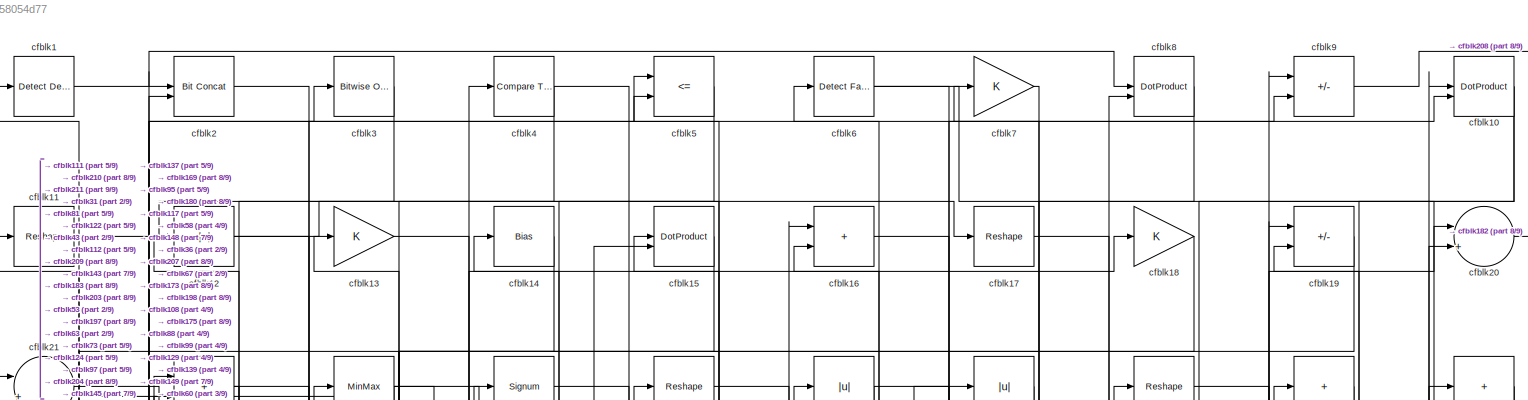
[diagram: root canvas - part 1/9, full width, top band]
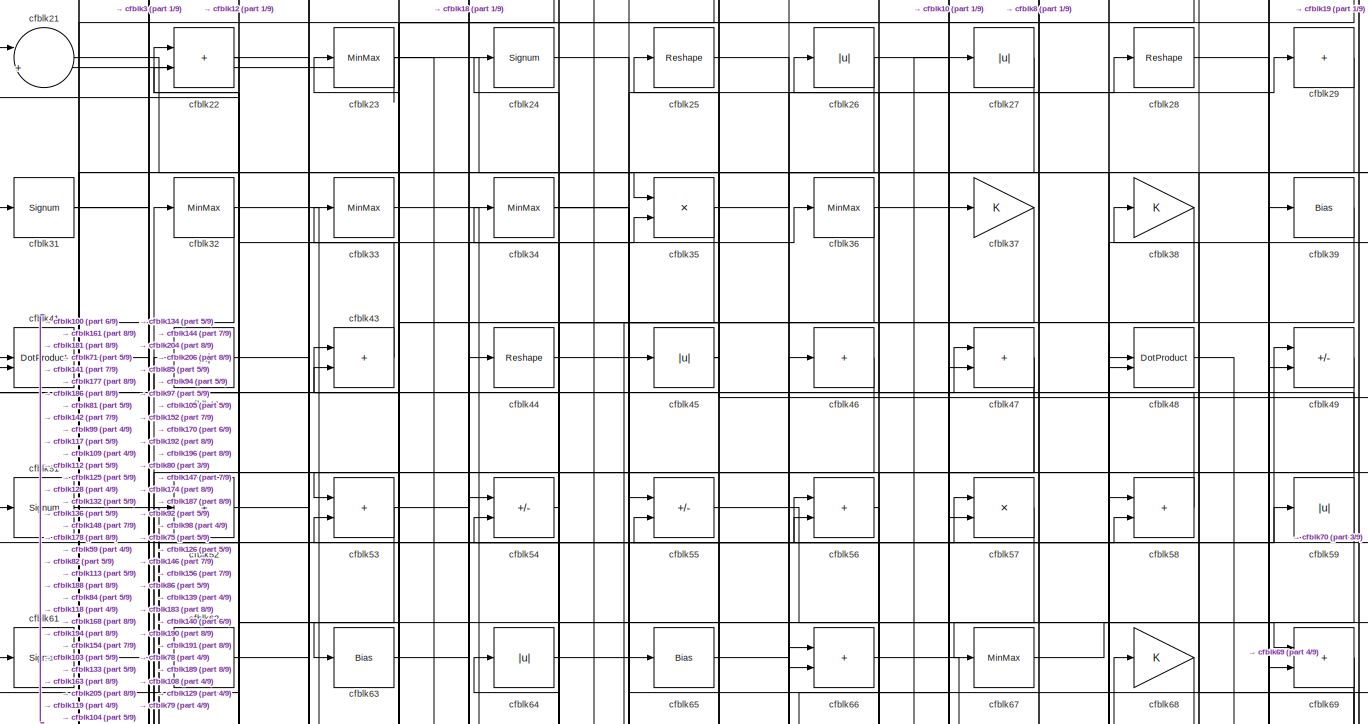
[diagram: root canvas - part 2/9, full width, top band]
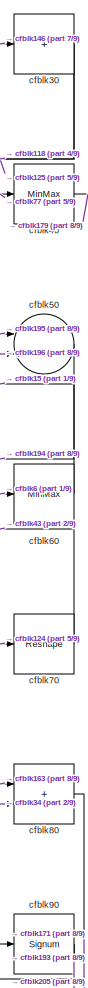
[diagram: root canvas - part 3/9, top right region]
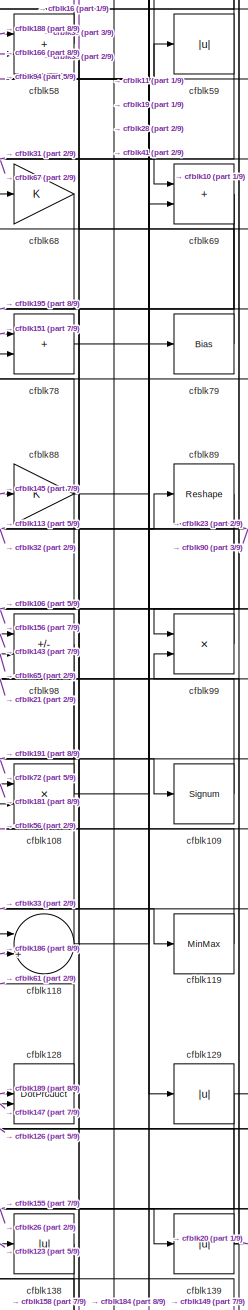
[diagram: root canvas - part 4/9, middle right region]
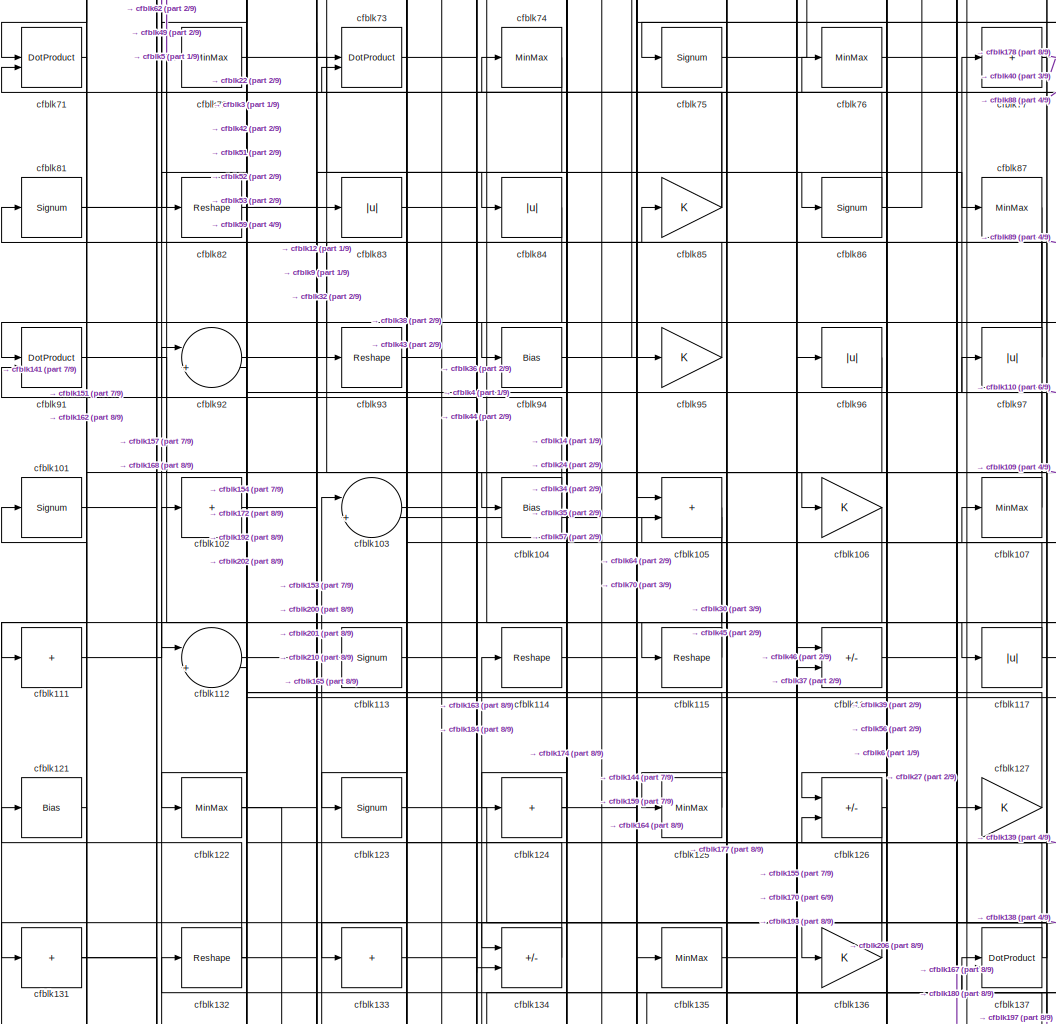
[diagram: root canvas - part 5/9, central region]
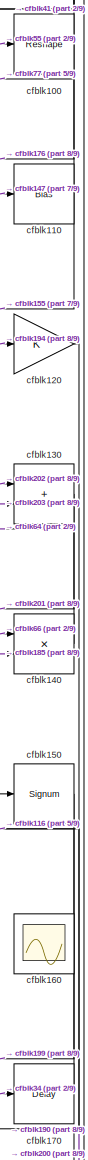
[diagram: root canvas - part 6/9, middle right region]
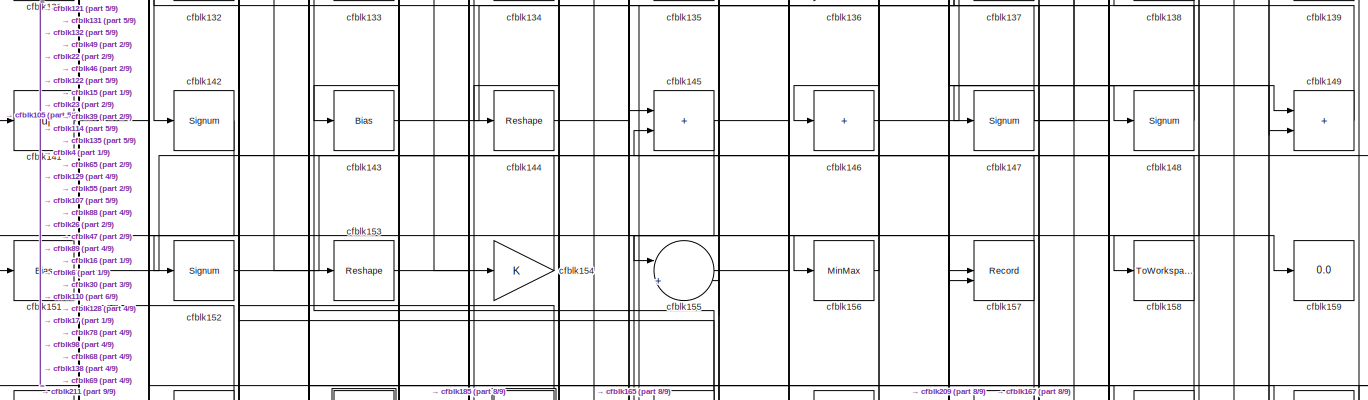
[diagram: root canvas - part 7/9, full width, bottom band]
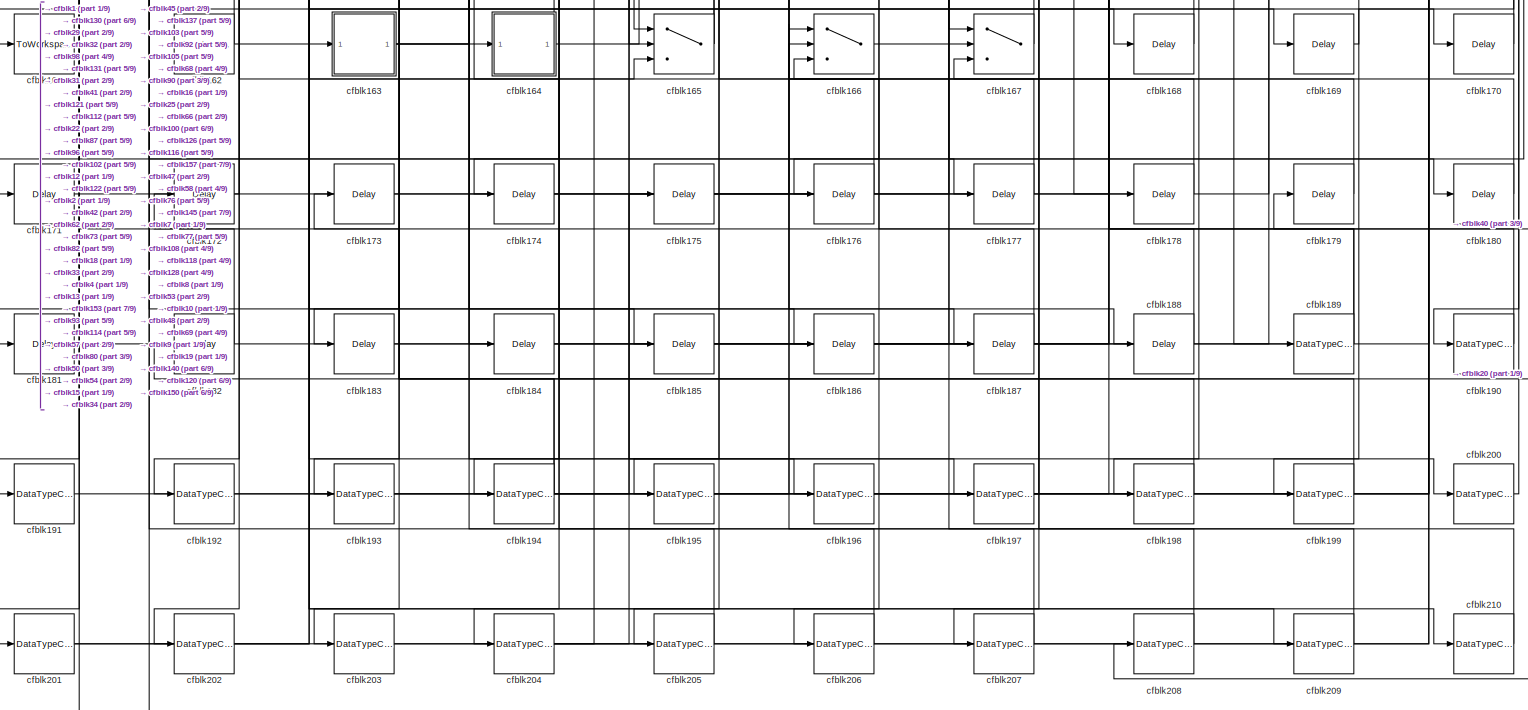
[diagram: root canvas - part 8/9, full width, bottom band]
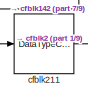
[diagram: root canvas - part 9/9, bottom left region]
MODEL slx_84d758054d77
KIND model
CONFIG AbsTol = auto
CONFIG EnableMultiTasking = off
CONFIG FixedStep = auto
CONFIG MaxStep = auto
CONFIG MinStep = auto
CONFIG RelTol = 1e-3
CONFIG SampleTimeConstraint = Unconstrained
CONFIG SolverName = VariableStepAuto
CONFIG StartTime = 0.0
CONFIG StopTime = 10.0
BLOCK [Reference] cfblk1  REF=simulink/Logic and Bit
Operations/Detect
Decrease
  LibrarySourceBlock = hdlsllib/Logic and Bit\nOperations/Detect\nDecrease
  SourceBlock = simulink/Logic and Bit\nOperations/Detect\nDecrease
  SourceType = Detect Decrease
BLOCK [DotProduct] cfblk10
  OutDataTypeStr = Inherit: Inherit via internal rule
BLOCK [Reshape] cfblk100
BLOCK [Signum] cfblk101
BLOCK [Sum] cfblk102
  IconShape = rectangular
  Inputs = +
BLOCK [Sum] cfblk103
  Inputs = |++
BLOCK [Bias] cfblk104
  Bias = 0.0
  SaturateOnIntegerOverflow = off
BLOCK [Sum] cfblk105
  IconShape = rectangular
BLOCK [Gain] cfblk106
BLOCK [MinMax] cfblk107
BLOCK [Product] cfblk108
  Inputs = */
  RndMeth = Zero
  SaturateOnIntegerOverflow = on
BLOCK [Signum] cfblk109
BLOCK [Reshape] cfblk11
BLOCK [Bias] cfblk110
  Bias = 0.0
  SaturateOnIntegerOverflow = off
BLOCK [Sum] cfblk111
  IconShape = rectangular
  Inputs = +
BLOCK [Sum] cfblk112
  Inputs = |++
BLOCK [Signum] cfblk113
BLOCK [Reshape] cfblk114
BLOCK [Reshape] cfblk115
BLOCK [Sum] cfblk116
  IconShape = rectangular
  Inputs = +-
BLOCK [Abs] cfblk117
  SaturateOnIntegerOverflow = off
BLOCK [Sum] cfblk118
  Inputs = |++
BLOCK [MinMax] cfblk119
BLOCK [Abs] cfblk12
  SaturateOnIntegerOverflow = off
BLOCK [Gain] cfblk120
BLOCK [Bias] cfblk121
  Bias = 0.0
  SaturateOnIntegerOverflow = off
BLOCK [MinMax] cfblk122
BLOCK [Signum] cfblk123
BLOCK [Sum] cfblk124
  IconShape = rectangular
  Inputs = +
BLOCK [MinMax] cfblk125
BLOCK [Sum] cfblk126
  IconShape = rectangular
  Inputs = +-
BLOCK [Gain] cfblk127
BLOCK [DotProduct] cfblk128
  OutDataTypeStr = Inherit: Inherit via internal rule
BLOCK [Abs] cfblk129
  SaturateOnIntegerOverflow = off
BLOCK [Gain] cfblk13
BLOCK [Sum] cfblk130
  IconShape = rectangular
BLOCK [Sum] cfblk131
  IconShape = rectangular
  Inputs = +
BLOCK [Reshape] cfblk132
BLOCK [Sum] cfblk133
  IconShape = rectangular
  Inputs = +
BLOCK [Sum] cfblk134
  IconShape = rectangular
  Inputs = +-
BLOCK [MinMax] cfblk135
BLOCK [Gain] cfblk136
BLOCK [DotProduct] cfblk137
  OutDataTypeStr = Inherit: Inherit via internal rule
BLOCK [Abs] cfblk138
  SaturateOnIntegerOverflow = off
BLOCK [Abs] cfblk139
  SaturateOnIntegerOverflow = off
BLOCK [Bias] cfblk14
  Bias = 0.0
  SaturateOnIntegerOverflow = off
BLOCK [Product] cfblk140
  Inputs = */
  RndMeth = Zero
  SaturateOnIntegerOverflow = on
BLOCK [Abs] cfblk141
  SaturateOnIntegerOverflow = off
BLOCK [Signum] cfblk142
BLOCK [Bias] cfblk143
  Bias = 0.0
  SaturateOnIntegerOverflow = off
BLOCK [Reshape] cfblk144
BLOCK [Sum] cfblk145
  IconShape = rectangular
BLOCK [Sum] cfblk146
  IconShape = rectangular
  Inputs = +
BLOCK [Signum] cfblk147
BLOCK [Signum] cfblk148
BLOCK [Sum] cfblk149
  IconShape = rectangular
BLOCK [DotProduct] cfblk15
  OutDataTypeStr = Inherit: Inherit via internal rule
BLOCK [Signum] cfblk150
BLOCK [Bias] cfblk151
  Bias = 0.0
  SaturateOnIntegerOverflow = off
BLOCK [Signum] cfblk152
BLOCK [Reshape] cfblk153
BLOCK [Gain] cfblk154
BLOCK [Sum] cfblk155
  Inputs = |++
BLOCK [MinMax] cfblk156
BLOCK [Record] cfblk157
  CompatibilityTag = XY
  FileSettingsInternal = {"entries":[{"content":{"excelSettings":{"content":{},"type":"Streamout.ExcelSettings"}},"type":"Streamout.FileSettingStorage","uuid":""}],"packageUris":["http:\/\/schema.mathworks.com\/mf0\/streamout_blocks\/R2020a"],"version":"1.0"}
  Layout = [1 1]
  SignalsInternal = {"entries":[{"content":{},"type":"RecordBlkView.InputSignals","uuid":""}],"packageUris":["http:\/\/schema.mathworks.com\/mf0\/streamout_blocks\/R2020a"],"version":"1.0"}
  VisualizationBindings = {"xyplotplugin":{"info":[{"series":[{"bindingParametersList":[{"parameter":"X-Axis","signalID":3182,"signalName":"cfblk209"},{"parameter":"Y-Axis","signalID":3186,"signalName":"cfblk131"}],"seriesID":12440}],"subplotID":1}]}}
  st = -1
BLOCK [ToWorkspace] cfblk158
  MaxDataPoints = inf
  SampleTime = -1
  SaveFormat = Timeseries
  VariableName = simout
BLOCK [Display] cfblk159
  Decimation = 1
BLOCK [Sum] cfblk16
  IconShape = rectangular
BLOCK [Scope] cfblk160
  Floating = on
  NumInputPorts = 1
  ScopeSpecificationString = Simulink.scopes.TimeScopeBlockCfg('CurrentConfiguration', extmgr.ConfigurationSet(extmgr.Configuration('Core','General UI',true,'FigureColor',[0.156862745098039 0.156862745098039 0.156862745098039]),extmgr.Configuration('Core','Source UI',true),extmgr.Configuration('Sources','WiredSimulink',true,'DataLoggingVariableName','ScopeData1','DataLoggingSaveFormat','StructureWithTime','DataLoggingLimitDat...<+2713ch>
BLOCK [ToWorkspace] cfblk161
  MaxDataPoints = inf
  SampleTime = -1
  SaveFormat = Timeseries
  VariableName = simout
BLOCK [Reference] cfblk162  REF=hdlsllib/Sources/Counter
Limited
  SourceBlock = hdlsllib/Sources/Counter\nLimited
  SourceType = Counter Limited
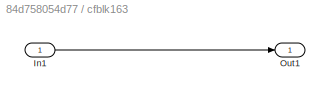
BLOCK [SubSystem] cfblk163
  LibrarySourceBlock = hdlsllib/Ports &\nSubsystems/Subsystem
BLOCK [Inport] cfblk163/In1
BLOCK [Outport] cfblk163/Out1
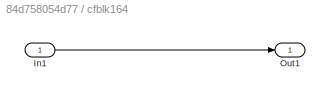
BLOCK [SubSystem] cfblk164
  LibrarySourceBlock = hdlsllib/Ports &\nSubsystems/Subsystem
BLOCK [Inport] cfblk164/In1
BLOCK [Outport] cfblk164/Out1
BLOCK [Switch] cfblk165
  InputSameDT = off
  SaturateOnIntegerOverflow = off
BLOCK [Switch] cfblk166
  InputSameDT = off
  SaturateOnIntegerOverflow = off
BLOCK [Switch] cfblk167
  InputSameDT = off
  SaturateOnIntegerOverflow = off
BLOCK [Delay] cfblk168
  InputPortMap = u0
  SampleTime = 1
BLOCK [Delay] cfblk169
  InputPortMap = u0
  SampleTime = 1
BLOCK [Reshape] cfblk17
BLOCK [Delay] cfblk170
  InputPortMap = u0
  SampleTime = 1
BLOCK [Delay] cfblk171
  InputPortMap = u0
  SampleTime = 1
BLOCK [Delay] cfblk172
  InputPortMap = u0
  SampleTime = 1
BLOCK [Delay] cfblk173
  InputPortMap = u0
  SampleTime = 1
BLOCK [Delay] cfblk174
  InputPortMap = u0
  SampleTime = 1
BLOCK [Delay] cfblk175
  InputPortMap = u0
  SampleTime = 1
BLOCK [Delay] cfblk176
  InputPortMap = u0
  SampleTime = 1
BLOCK [Delay] cfblk177
  InputPortMap = u0
  SampleTime = 1
BLOCK [Delay] cfblk178
  InputPortMap = u0
  SampleTime = 1
BLOCK [Delay] cfblk179
  InputPortMap = u0
  SampleTime = 1
BLOCK [Gain] cfblk18
BLOCK [Delay] cfblk180
  InputPortMap = u0
  SampleTime = 1
BLOCK [Delay] cfblk181
  InputPortMap = u0
  SampleTime = 1
BLOCK [Delay] cfblk182
  InputPortMap = u0
  SampleTime = 1
BLOCK [Delay] cfblk183
  InputPortMap = u0
  SampleTime = 1
BLOCK [Delay] cfblk184
  InputPortMap = u0
  SampleTime = 1
BLOCK [Delay] cfblk185
  InputPortMap = u0
  SampleTime = 1
BLOCK [Delay] cfblk186
  InputPortMap = u0
  SampleTime = 1
BLOCK [Delay] cfblk187
  InputPortMap = u0
  SampleTime = 1
BLOCK [Delay] cfblk188
  InputPortMap = u0
  SampleTime = 1
BLOCK [DataTypeConversion] cfblk189
  RndMeth = Floor
  SaturateOnIntegerOverflow = off
BLOCK [Sum] cfblk19
  IconShape = rectangular
  Inputs = +-
BLOCK [DataTypeConversion] cfblk190
  OutDataTypeStr = uint8
  RndMeth = Floor
  SaturateOnIntegerOverflow = off
BLOCK [DataTypeConversion] cfblk191
  OutDataTypeStr = uint8
  RndMeth = Floor
  SaturateOnIntegerOverflow = off
BLOCK [DataTypeConversion] cfblk192
  OutDataTypeStr = uint8
  RndMeth = Floor
  SaturateOnIntegerOverflow = off
BLOCK [DataTypeConversion] cfblk193
  OutDataTypeStr = uint8
  RndMeth = Floor
  SaturateOnIntegerOverflow = off
BLOCK [DataTypeConversion] cfblk194
  RndMeth = Floor
  SaturateOnIntegerOverflow = off
BLOCK [DataTypeConversion] cfblk195
  OutDataTypeStr = uint8
  RndMeth = Floor
  SaturateOnIntegerOverflow = off
BLOCK [DataTypeConversion] cfblk196
  OutDataTypeStr = uint8
  RndMeth = Floor
  SaturateOnIntegerOverflow = off
BLOCK [DataTypeConversion] cfblk197
  OutDataTypeStr = uint8
  RndMeth = Floor
  SaturateOnIntegerOverflow = off
BLOCK [DataTypeConversion] cfblk198
  OutDataTypeStr = uint8
  RndMeth = Floor
  SaturateOnIntegerOverflow = off
BLOCK [DataTypeConversion] cfblk199
  OutDataTypeStr = uint8
  RndMeth = Floor
  SaturateOnIntegerOverflow = off
BLOCK [Reference] cfblk2  REF=hdlsllib/Logic and Bit
Operations/Bit Concat
  SourceBlock = hdlsllib/Logic and Bit\nOperations/Bit Concat
  SourceType = Bit Concat
BLOCK [Sum] cfblk20
  Inputs = |++
BLOCK [DataTypeConversion] cfblk200
  OutDataTypeStr = uint8
  RndMeth = Floor
  SaturateOnIntegerOverflow = off
BLOCK [DataTypeConversion] cfblk201
  RndMeth = Floor
  SaturateOnIntegerOverflow = off
BLOCK [DataTypeConversion] cfblk202
  OutDataTypeStr = uint8
  RndMeth = Floor
  SaturateOnIntegerOverflow = off
BLOCK [DataTypeConversion] cfblk203
  OutDataTypeStr = uint8
  RndMeth = Floor
  SaturateOnIntegerOverflow = off
BLOCK [DataTypeConversion] cfblk204
  RndMeth = Floor
  SaturateOnIntegerOverflow = off
BLOCK [DataTypeConversion] cfblk205
  OutDataTypeStr = uint8
  RndMeth = Floor
  SaturateOnIntegerOverflow = off
BLOCK [DataTypeConversion] cfblk206
  OutDataTypeStr = uint8
  RndMeth = Floor
  SaturateOnIntegerOverflow = off
BLOCK [DataTypeConversion] cfblk207
  OutDataTypeStr = uint8
  RndMeth = Floor
  SaturateOnIntegerOverflow = off
BLOCK [DataTypeConversion] cfblk208
  OutDataTypeStr = uint8
  RndMeth = Floor
  SaturateOnIntegerOverflow = off
BLOCK [DataTypeConversion] cfblk209
  OutDataTypeStr = uint8
  RndMeth = Floor
  SaturateOnIntegerOverflow = off
BLOCK [Sum] cfblk21
  Inputs = |++
BLOCK [DataTypeConversion] cfblk210
  OutDataTypeStr = uint8
  RndMeth = Floor
  SaturateOnIntegerOverflow = off
BLOCK [DataTypeConversion] cfblk211
  OutDataTypeStr = uint8
  RndMeth = Floor
  SaturateOnIntegerOverflow = off
BLOCK [Sum] cfblk22
  IconShape = rectangular
BLOCK [MinMax] cfblk23
BLOCK [Signum] cfblk24
BLOCK [Reshape] cfblk25
BLOCK [Abs] cfblk26
  SaturateOnIntegerOverflow = off
BLOCK [Abs] cfblk27
  SaturateOnIntegerOverflow = off
BLOCK [Reshape] cfblk28
BLOCK [Sum] cfblk29
  IconShape = rectangular
  Inputs = +
BLOCK [Reference] cfblk3  REF=simulink/Logic and Bit
Operations/Bitwise
Operator
  LibrarySourceBlock = hdlsllib/Logic and Bit\nOperations/Bitwise\nOperator
  SourceBlock = simulink/Logic and Bit\nOperations/Bitwise\nOperator
  SourceType = Bitwise Operator
BLOCK [Sum] cfblk30
  IconShape = rectangular
  Inputs = +
BLOCK [Signum] cfblk31
BLOCK [MinMax] cfblk32
BLOCK [MinMax] cfblk33
BLOCK [MinMax] cfblk34
BLOCK [Product] cfblk35
  Inputs = */
  RndMeth = Zero
  SaturateOnIntegerOverflow = on
BLOCK [MinMax] cfblk36
BLOCK [Gain] cfblk37
BLOCK [Gain] cfblk38
BLOCK [Bias] cfblk39
  Bias = 0.0
  SaturateOnIntegerOverflow = off
BLOCK [Reference] cfblk4  REF=hdlsllib/Logic and Bit
Operations/Compare
To Constant
  SourceBlock = hdlsllib/Logic and Bit\nOperations/Compare\nTo Constant
  SourceType = Compare To Constant
BLOCK [MinMax] cfblk40
BLOCK [DotProduct] cfblk41
  OutDataTypeStr = Inherit: Inherit via internal rule
BLOCK [Abs] cfblk42
  SaturateOnIntegerOverflow = off
BLOCK [Sum] cfblk43
  IconShape = rectangular
BLOCK [Reshape] cfblk44
BLOCK [Abs] cfblk45
  SaturateOnIntegerOverflow = off
BLOCK [Sum] cfblk46
  IconShape = rectangular
  Inputs = +
BLOCK [Sum] cfblk47
  IconShape = rectangular
BLOCK [DotProduct] cfblk48
  OutDataTypeStr = Inherit: Inherit via internal rule
BLOCK [Sum] cfblk49
  IconShape = rectangular
  Inputs = +-
BLOCK [RelationalOperator] cfblk5
  InputSameDT = off
  Operator = <=
  OutDataTypeStr = boolean
BLOCK [Sum] cfblk50
  Inputs = |++
BLOCK [Signum] cfblk51
BLOCK [Sum] cfblk52
  IconShape = rectangular
  Inputs = +
BLOCK [Sum] cfblk53
  IconShape = rectangular
BLOCK [Sum] cfblk54
  IconShape = rectangular
  Inputs = +-
BLOCK [Sum] cfblk55
  IconShape = rectangular
  Inputs = +-
BLOCK [Sum] cfblk56
  IconShape = rectangular
BLOCK [Product] cfblk57
  Inputs = */
  RndMeth = Zero
  SaturateOnIntegerOverflow = on
BLOCK [Sum] cfblk58
  IconShape = rectangular
BLOCK [Abs] cfblk59
  SaturateOnIntegerOverflow = off
BLOCK [Reference] cfblk6  REF=hdlsllib/Logic and Bit
Operations/Detect Fall
Nonpositive
  SourceBlock = hdlsllib/Logic and Bit\nOperations/Detect Fall\nNonpositive
  SourceType = Detect Fall Nonpositive
BLOCK [MinMax] cfblk60
BLOCK [Signum] cfblk61
BLOCK [Sum] cfblk62
  IconShape = rectangular
  Inputs = +
BLOCK [Bias] cfblk63
  Bias = 0.0
  SaturateOnIntegerOverflow = off
BLOCK [Abs] cfblk64
  SaturateOnIntegerOverflow = off
BLOCK [Bias] cfblk65
  Bias = 0.0
  SaturateOnIntegerOverflow = off
BLOCK [Sum] cfblk66
  IconShape = rectangular
BLOCK [MinMax] cfblk67
BLOCK [Gain] cfblk68
BLOCK [Sum] cfblk69
  IconShape = rectangular
BLOCK [Gain] cfblk7
BLOCK [Reshape] cfblk70
BLOCK [DotProduct] cfblk71
  OutDataTypeStr = Inherit: Inherit via internal rule
BLOCK [MinMax] cfblk72
BLOCK [DotProduct] cfblk73
  OutDataTypeStr = Inherit: Inherit via internal rule
BLOCK [MinMax] cfblk74
BLOCK [Signum] cfblk75
BLOCK [MinMax] cfblk76
BLOCK [Sum] cfblk77
  IconShape = rectangular
  Inputs = +
BLOCK [Sum] cfblk78
  IconShape = rectangular
BLOCK [Bias] cfblk79
  Bias = 0.0
  SaturateOnIntegerOverflow = off
BLOCK [DotProduct] cfblk8
  OutDataTypeStr = Inherit: Inherit via internal rule
BLOCK [Sum] cfblk80
  IconShape = rectangular
BLOCK [Signum] cfblk81
BLOCK [Reshape] cfblk82
BLOCK [Abs] cfblk83
  SaturateOnIntegerOverflow = off
BLOCK [Abs] cfblk84
  SaturateOnIntegerOverflow = off
BLOCK [Gain] cfblk85
BLOCK [Signum] cfblk86
BLOCK [MinMax] cfblk87
BLOCK [Gain] cfblk88
BLOCK [Reshape] cfblk89
BLOCK [Sum] cfblk9
  IconShape = rectangular
  Inputs = +-
BLOCK [Signum] cfblk90
BLOCK [DotProduct] cfblk91
  OutDataTypeStr = Inherit: Inherit via internal rule
BLOCK [Sum] cfblk92
  Inputs = |++
BLOCK [Reshape] cfblk93
BLOCK [Bias] cfblk94
  Bias = 0.0
  SaturateOnIntegerOverflow = off
BLOCK [Gain] cfblk95
BLOCK [Abs] cfblk96
  SaturateOnIntegerOverflow = off
BLOCK [Abs] cfblk97
  SaturateOnIntegerOverflow = off
BLOCK [Sum] cfblk98
  IconShape = rectangular
  Inputs = +-
BLOCK [Product] cfblk99
  Inputs = */
  RndMeth = Zero
  SaturateOnIntegerOverflow = on
NET cfblk100:1 -> cfblk176:1, cfblk41:1
LINE cfblk101:1 -> cfblk85:1
LINE cfblk102:1 -> cfblk210:1
LINE cfblk103:1 -> cfblk44:1
LINE cfblk104:1 -> cfblk91:2
LINE cfblk105:1 -> cfblk141:1
LINE cfblk106:1 -> cfblk115:1
LINE cfblk107:1 -> cfblk76:1
NET cfblk108:1 -> cfblk19:1, cfblk41:2
LINE cfblk109:1 -> cfblk21:1
NET cfblk10:1 -> cfblk198:1, cfblk99:1
NET cfblk110:1 -> cfblk155:1, cfblk77:1
LINE cfblk111:1 -> cfblk102:1
LINE cfblk112:1 -> cfblk9:2
LINE cfblk113:1 -> cfblk89:1
LINE cfblk114:1 -> cfblk159:1
LINE cfblk115:1 -> cfblk103:2
LINE cfblk116:1 -> cfblk167:1
NET cfblk117:1 -> cfblk39:1, cfblk6:1
NET cfblk118:1 -> cfblk23:1, cfblk90:1
LINE cfblk119:1 -> cfblk56:1
LINE cfblk11:1 -> cfblk17:1
LINE cfblk120:1 -> cfblk190:1
LINE cfblk121:1 -> cfblk151:1
NET cfblk122:1 -> cfblk153:1, cfblk200:1
LINE cfblk123:1 -> cfblk138:1
NET cfblk124:1 -> cfblk70:1, cfblk74:1
LINE cfblk125:1 -> cfblk51:1
NET cfblk126:1 -> cfblk174:1, cfblk206:1
LINE cfblk127:1 -> cfblk81:1
LINE cfblk128:1 -> cfblk61:1
NET cfblk129:1 -> cfblk10:1, cfblk155:2
NET cfblk12:1 -> cfblk169:1, cfblk95:1
LINE cfblk130:1 -> cfblk201:1
NET cfblk131:1 -> cfblk157:2, cfblk168:1
NET cfblk132:1 -> cfblk101:1, cfblk42:1, cfblk83:1
LINE cfblk133:1 -> cfblk36:1
LINE cfblk134:1 -> cfblk43:1
LINE cfblk135:1 -> cfblk116:2
LINE cfblk136:1 -> cfblk52:1
NET cfblk137:1 -> cfblk5:2, cfblk97:1
LINE cfblk138:1 -> cfblk147:1
NET cfblk139:1 -> cfblk126:2, cfblk20:2, cfblk99:2
LINE cfblk13:1 -> cfblk197:1
LINE cfblk140:1 -> cfblk64:1
LINE cfblk141:1 -> cfblk47:1
LINE cfblk142:1 -> cfblk211:1
LINE cfblk143:1 -> cfblk98:1
LINE cfblk144:1 -> cfblk135:1
NET cfblk145:1 -> cfblk165:1, cfblk88:1
LINE cfblk146:1 -> cfblk30:1
NET cfblk147:1 -> cfblk110:1, cfblk128:2, cfblk55:2
LINE cfblk148:1 -> cfblk22:1
LINE cfblk149:1 -> cfblk68:1
LINE cfblk14:1 -> cfblk111:1
LINE cfblk150:1 -> cfblk199:1
LINE cfblk151:1 -> cfblk78:1
LINE cfblk152:1 -> cfblk65:1
LINE cfblk153:1 -> cfblk185:1
LINE cfblk154:1 -> cfblk132:1
LINE cfblk155:1 -> cfblk107:1
LINE cfblk156:1 -> cfblk26:1
LINE cfblk15:1 -> cfblk143:1
NET cfblk162:1 -> cfblk121:1, cfblk165:3
LINE cfblk163/In1:1 -> cfblk163/Out1:1
NET cfblk163:1 -> cfblk114:1, cfblk57:1, cfblk80:1
LINE cfblk164/In1:1 -> cfblk164/Out1:1
NET cfblk164:1 -> cfblk137:1, cfblk92:2
NET cfblk165:1 -> cfblk103:1, cfblk92:1
LINE cfblk166:1 -> cfblk58:2
LINE cfblk167:1 -> cfblk145:2
LINE cfblk168:1 -> cfblk53:2
LINE cfblk169:1 -> cfblk19:2
LINE cfblk16:1 -> cfblk148:1
LINE cfblk170:1 -> cfblk116:1
LINE cfblk171:1 -> cfblk167:2
LINE cfblk172:1 -> cfblk112:2
LINE cfblk173:1 -> cfblk8:2
LINE cfblk174:1 -> cfblk66:1
LINE cfblk175:1 -> cfblk9:1
LINE cfblk176:1 -> cfblk166:2
LINE cfblk177:1 -> cfblk105:2
LINE cfblk178:1 -> cfblk22:2
LINE cfblk179:1 -> cfblk167:3
LINE cfblk17:1 -> cfblk149:1
LINE cfblk180:1 -> cfblk16:1
LINE cfblk181:1 -> cfblk108:1
LINE cfblk182:1 -> cfblk1:1
LINE cfblk183:1 -> cfblk47:2
LINE cfblk184:1 -> cfblk69:2
LINE cfblk185:1 -> cfblk140:2
LINE cfblk186:1 -> cfblk118:2
LINE cfblk187:1 -> cfblk166:3
LINE cfblk188:1 -> cfblk58:1
NET cfblk189:1 -> cfblk128:1, cfblk172:1
LINE cfblk18:1 -> cfblk203:1
LINE cfblk190:1 -> cfblk48:1
LINE cfblk191:1 -> cfblk48:2
LINE cfblk192:1 -> cfblk45:1
LINE cfblk193:1 -> cfblk96:1
NET cfblk194:1 -> cfblk120:1, cfblk173:1, cfblk33:1
LINE cfblk195:1 -> cfblk50:1
LINE cfblk196:1 -> cfblk50:2
LINE cfblk197:1 -> cfblk137:2
LINE cfblk198:1 -> cfblk13:1
LINE cfblk199:1 -> cfblk164:1
LINE cfblk19:1 -> cfblk53:1
LINE cfblk1:1 -> cfblk8:1
LINE cfblk200:1 -> cfblk150:1
NET cfblk201:1 -> cfblk73:1, cfblk93:1
LINE cfblk202:1 -> cfblk130:1
LINE cfblk203:1 -> cfblk130:2
NET cfblk204:1 -> cfblk15:2, cfblk175:1
LINE cfblk205:1 -> cfblk54:1
LINE cfblk206:1 -> cfblk54:2
LINE cfblk207:1 -> cfblk166:1
LINE cfblk208:1 -> cfblk7:1
LINE cfblk209:1 -> cfblk157:1
LINE cfblk20:1 -> cfblk182:1
LINE cfblk210:1 -> cfblk2:1
LINE cfblk211:1 -> cfblk2:2
LINE cfblk21:1 -> cfblk78:2
NET cfblk22:1 -> cfblk113:1, cfblk82:1
NET cfblk23:1 -> cfblk154:1, cfblk21:2, cfblk35:1
LINE cfblk24:1 -> cfblk55:1
LINE cfblk25:1 -> cfblk187:1
NET cfblk26:1 -> cfblk139:1, cfblk66:2
LINE cfblk27:1 -> cfblk71:1
LINE cfblk28:1 -> cfblk129:1
LINE cfblk29:1 -> cfblk161:1
LINE cfblk2:1 -> cfblk209:1
NET cfblk30:1 -> cfblk118:1, cfblk125:1
NET cfblk31:1 -> cfblk186:1, cfblk3:1
NET cfblk32:1 -> cfblk181:1, cfblk84:1
LINE cfblk33:1 -> cfblk119:1
NET cfblk34:1 -> cfblk170:1, cfblk196:1, cfblk80:2
NET cfblk35:1 -> cfblk104:1, cfblk29:1
NET cfblk36:1 -> cfblk10:2, cfblk63:1
LINE cfblk37:1 -> cfblk94:1
LINE cfblk38:1 -> cfblk133:1
LINE cfblk39:1 -> cfblk144:1
LINE cfblk3:1 -> cfblk122:1
LINE cfblk40:1 -> cfblk179:1
LINE cfblk41:1 -> cfblk177:1
LINE cfblk42:1 -> cfblk163:1
LINE cfblk43:1 -> cfblk12:1
LINE cfblk44:1 -> cfblk28:1
NET cfblk45:1 -> cfblk25:1, cfblk75:1
LINE cfblk46:1 -> cfblk152:1
NET cfblk47:1 -> cfblk146:1, cfblk57:2
LINE cfblk48:1 -> cfblk189:1
LINE cfblk49:1 -> cfblk142:1
NET cfblk4:1 -> cfblk145:1, cfblk183:1
LINE cfblk50:1 -> cfblk194:1
LINE cfblk51:1 -> cfblk117:1
LINE cfblk52:1 -> cfblk35:2
NET cfblk53:1 -> cfblk112:1, cfblk56:2
LINE cfblk54:1 -> cfblk204:1
LINE cfblk55:1 -> cfblk100:1
LINE cfblk56:1 -> cfblk126:1
LINE cfblk57:1 -> cfblk134:1
LINE cfblk58:1 -> cfblk16:2
NET cfblk59:1 -> cfblk31:1, cfblk72:1
LINE cfblk5:1 -> cfblk124:1
LINE cfblk60:1 -> cfblk15:1
LINE cfblk61:1 -> cfblk49:2
LINE cfblk62:1 -> cfblk188:1
LINE cfblk63:1 -> cfblk18:1
LINE cfblk64:1 -> cfblk105:1
LINE cfblk65:1 -> cfblk98:2
LINE cfblk66:1 -> cfblk140:1
LINE cfblk67:1 -> cfblk69:1
LINE cfblk68:1 -> cfblk195:1
NET cfblk69:1 -> cfblk108:2, cfblk158:1
NET cfblk6:1 -> cfblk149:2, cfblk60:1
LINE cfblk70:1 -> cfblk43:2
LINE cfblk71:1 -> cfblk131:1
LINE cfblk72:1 -> cfblk109:1
LINE cfblk73:1 -> cfblk4:1
LINE cfblk74:1 -> cfblk123:1
LINE cfblk75:1 -> cfblk37:1
LINE cfblk76:1 -> cfblk180:1
NET cfblk77:1 -> cfblk178:1, cfblk40:1
LINE cfblk78:1 -> cfblk79:1
LINE cfblk79:1 -> cfblk38:1
LINE cfblk7:1 -> cfblk207:1
LINE cfblk80:1 -> cfblk171:1
NET cfblk81:1 -> cfblk49:1, cfblk5:1
NET cfblk82:1 -> cfblk165:2, cfblk86:1, cfblk87:1
LINE cfblk83:1 -> cfblk136:1
LINE cfblk84:1 -> cfblk91:1
NET cfblk85:1 -> cfblk24:1, cfblk73:2
NET cfblk86:1 -> cfblk27:1, cfblk62:1
LINE cfblk87:1 -> cfblk202:1
NET cfblk88:1 -> cfblk106:1, cfblk11:1, cfblk20:1
LINE cfblk89:1 -> cfblk156:1
LINE cfblk8:1 -> cfblk67:1
NET cfblk90:1 -> cfblk193:1, cfblk205:1
LINE cfblk91:1 -> cfblk127:1
LINE cfblk92:1 -> cfblk46:1
LINE cfblk93:1 -> cfblk184:1
LINE cfblk94:1 -> cfblk59:1
LINE cfblk95:1 -> cfblk71:2
LINE cfblk96:1 -> cfblk192:1
NET cfblk97:1 -> cfblk134:2, cfblk14:1, cfblk34:1
LINE cfblk98:1 -> cfblk191:1
LINE cfblk99:1 -> cfblk32:1
LINE cfblk9:1 -> cfblk208:1
note: NET lines group one-source signal fan-out (src -> all destinations, sorted); 1:1 wires keep LINE
